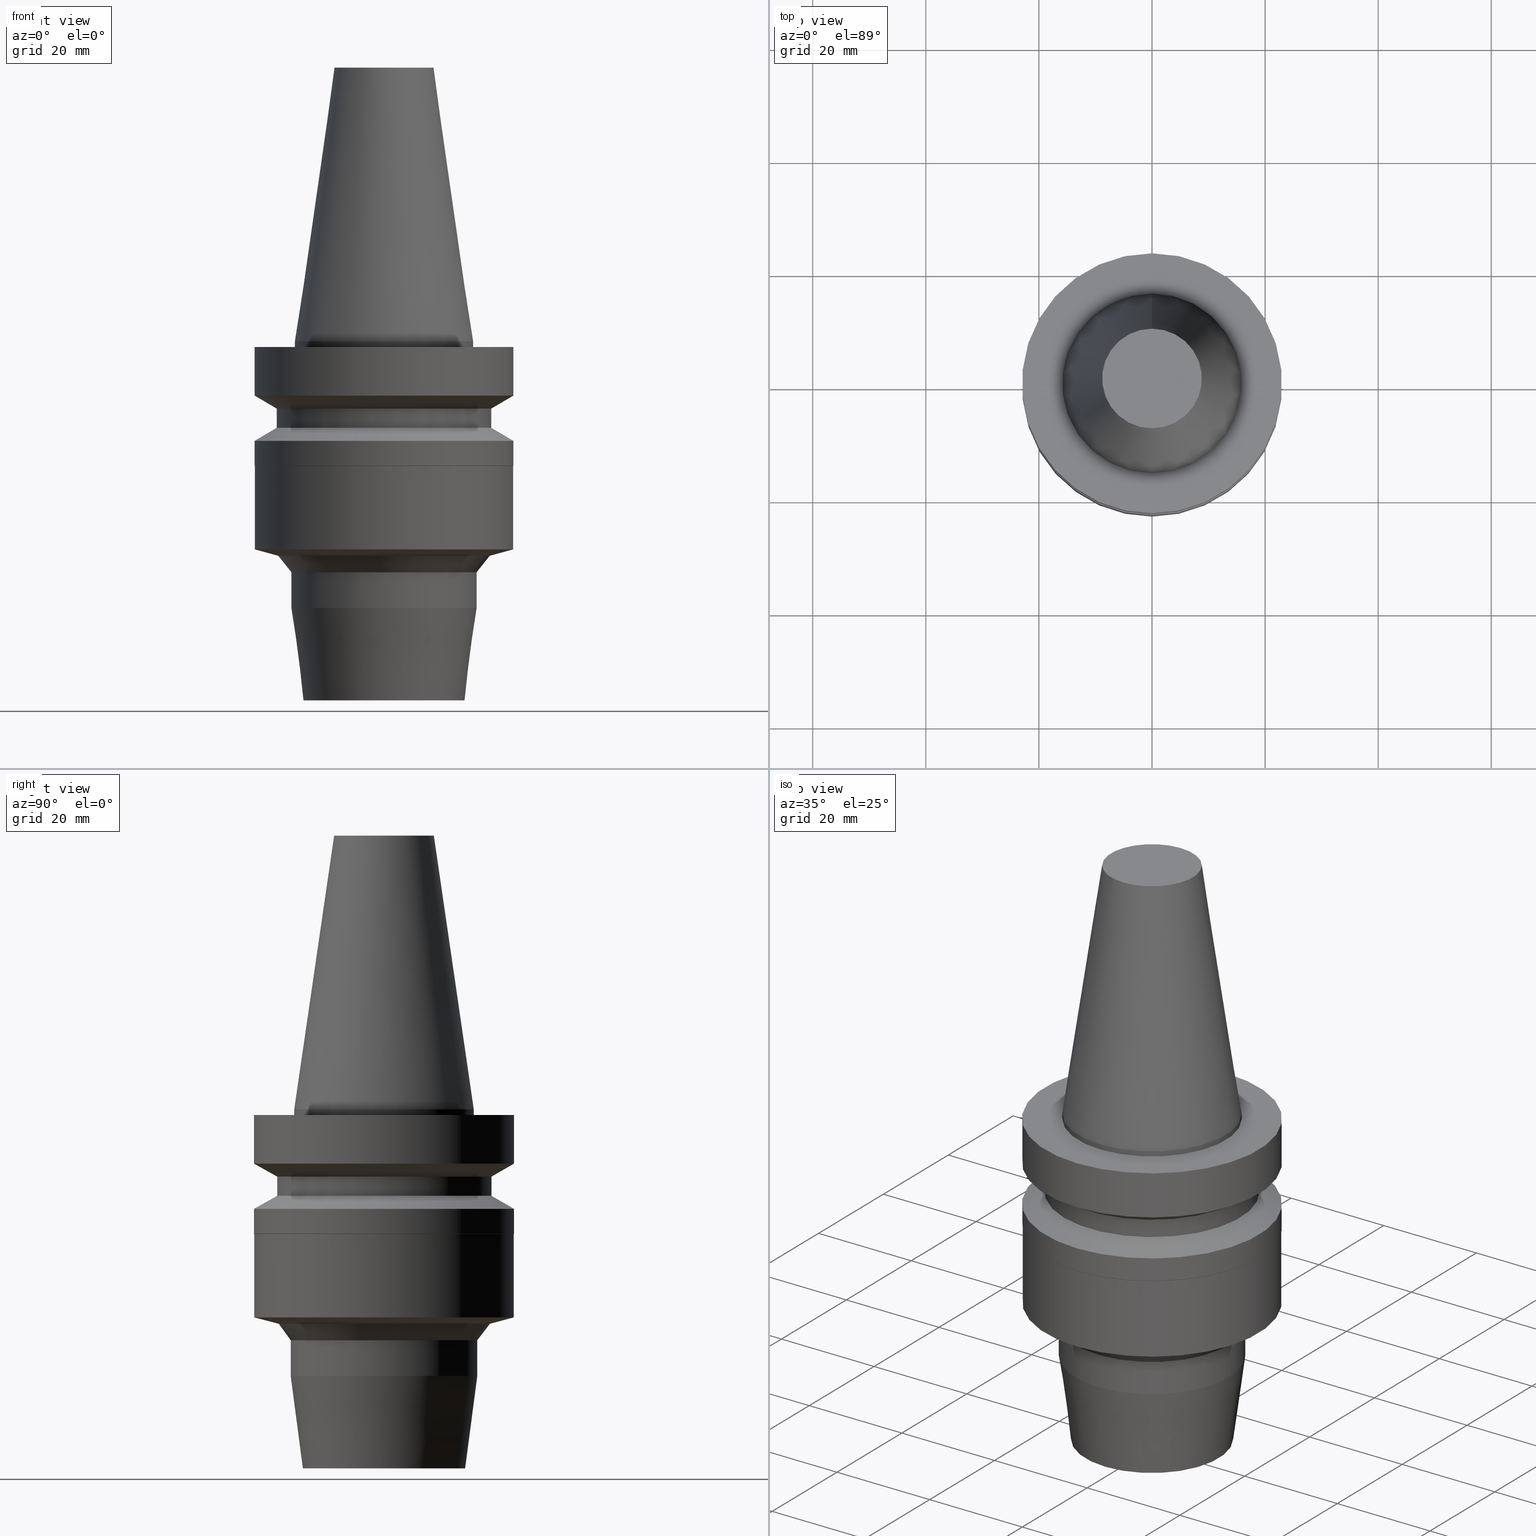
[diagram: canonical four-view strip — front | top / right | iso, engineering-drawing reading convention]
A machine part, canonical four-view strip (front | top / right | iso — engineering-drawing reading convention). The complete STEP part file that produces these views, byte-faithful:
ISO-10303-21;
HEADER;
FILE_DESCRIPTION((''),'1');
FILE_NAME('V:/90_\X2\53D65F9730C730FC30BF\X0\/00_\X2\6DE18DEF30C730FC30BF\X0\/ALL/BBT-BKUS\X2\FF76FF80FF9BFF78FF9E752852A05DE556F3\X0\201801/BBT30-HDC/BBT30-HDC.500-2.5.stp','2018-02-07T04:31:55',(''),(''),'Spatial Interop R21 SP3','Kubotek KeyCreator 2011 V10.0.2 (22737)',' ');
FILE_SCHEMA(('automotive_design'));
ENDSEC;
DATA;
#1=MECHANICAL_DESIGN_GEOMETRIC_PRESENTATION_REPRESENTATION(' ',(#10,#11,#12,#13,#14,#15,#16,#17,#18,#19,#20,#21,#22,#23,#24,#25,#26,#27,#28,#29,#30,#31,#32,#33,#34,#35,#36,#37,#38,#39,#40,#41),#6);
#2=PRODUCT_DEFINITION_CONTEXT('',#42,'design');
#3=APPLICATION_PROTOCOL_DEFINITION('INTERNATIONAL STANDARD','automotive_design',1994,#42);
#4=PRODUCT_CATEGORY_RELATIONSHIP('NONE','NONE',#43,#44);
#5=SHAPE_DEFINITION_REPRESENTATION(#45,#46);
#6= (GEOMETRIC_REPRESENTATION_CONTEXT(3)GLOBAL_UNCERTAINTY_ASSIGNED_CONTEXT((#49))GLOBAL_UNIT_ASSIGNED_CONTEXT((#51,#52,#53))REPRESENTATION_CONTEXT('NONE','WORKSPACE'));
#10=STYLED_ITEM('',(#55,#56),#57);
#11=STYLED_ITEM('',(#58),#59);
#12=STYLED_ITEM('',(#60,#61),#62);
#13=STYLED_ITEM('',(#63),#64);
#14=STYLED_ITEM('',(#65,#66),#67);
#15=STYLED_ITEM('',(#68,#69),#70);
#16=STYLED_ITEM('',(#71),#72);
#17=STYLED_ITEM('',(#73,#74),#75);
#18=STYLED_ITEM('',(#76,#77),#78);
#19=STYLED_ITEM('',(#79),#80);
#20=STYLED_ITEM('',(#81),#82);
#21=STYLED_ITEM('',(#83),#84);
#22=STYLED_ITEM('',(#85,#86),#87);
#23=STYLED_ITEM('',(#88),#89);
#24=STYLED_ITEM('',(#90,#91),#92);
#25=STYLED_ITEM('',(#93,#94),#95);
#26=STYLED_ITEM('',(#96),#97);
#27=STYLED_ITEM('',(#98,#99),#100);
#28=STYLED_ITEM('',(#101),#102);
#29=STYLED_ITEM('',(#103),#104);
#30=STYLED_ITEM('',(#105,#106),#107);
#31=STYLED_ITEM('',(#108,#109),#110);
#32=STYLED_ITEM('',(#111,#112),#113);
#33=STYLED_ITEM('',(#114,#115),#116);
#34=STYLED_ITEM('',(#117),#118);
#35=STYLED_ITEM('',(#119,#120),#121);
#36=STYLED_ITEM('',(#122),#123);
#37=STYLED_ITEM('',(#124),#125);
#38=STYLED_ITEM('',(#126,#127),#128);
#39=STYLED_ITEM('',(#129),#130);
#40=STYLED_ITEM('',(#131,#132),#133);
#41=STYLED_ITEM('',(#134),#135);
#42=APPLICATION_CONTEXT(' ');
#43=PRODUCT_CATEGORY('part','NONE');
#44=PRODUCT_RELATED_PRODUCT_CATEGORY('detail',' ',(#136));
#45=PRODUCT_DEFINITION_SHAPE('NONE','NONE',#137);
#46=ADVANCED_BREP_SHAPE_REPRESENTATION('Unnamed[1]',(#70,#138),#6);
#49=UNCERTAINTY_MEASURE_WITH_UNIT(LENGTH_MEASURE(1.0E-006),#51,'','');
#51= (CONVERSION_BASED_UNIT('MILLIMETRE',#141)LENGTH_UNIT()NAMED_UNIT(#144));
#52= (NAMED_UNIT(#146)PLANE_ANGLE_UNIT()SI_UNIT($,.RADIAN.));
#53= (NAMED_UNIT(#146)SOLID_ANGLE_UNIT()SI_UNIT($,.STERADIAN.));
#55=PRESENTATION_STYLE_ASSIGNMENT((#152));
#56=PRESENTATION_STYLE_ASSIGNMENT((#153));
#57=ADVANCED_FACE('Unnamed[1]',(#154,#155),#156,.T.);
#58=PRESENTATION_STYLE_ASSIGNMENT((#157));
#59=EDGE_CURVE('Unnamed[1]',#158,#158,#159,.T.);
#60=PRESENTATION_STYLE_ASSIGNMENT((#160));
#61=PRESENTATION_STYLE_ASSIGNMENT((#161));
#62=ADVANCED_FACE('Unnamed[1]',(#162,#163),#164,.T.);
#63=PRESENTATION_STYLE_ASSIGNMENT((#165));
#64=EDGE_CURVE('Unnamed[1]',#166,#166,#167,.T.);
#65=PRESENTATION_STYLE_ASSIGNMENT((#168));
#66=PRESENTATION_STYLE_ASSIGNMENT((#169));
#67=ADVANCED_FACE('Unnamed[1]',(#170,#171),#172,.T.);
#68=PRESENTATION_STYLE_ASSIGNMENT((#173));
#69=PRESENTATION_STYLE_ASSIGNMENT((#174));
#70=MANIFOLD_SOLID_BREP('Unnamed[1]',#175);
#71=PRESENTATION_STYLE_ASSIGNMENT((#176));
#72=EDGE_CURVE('Unnamed[1]',#177,#177,#178,.T.);
#73=PRESENTATION_STYLE_ASSIGNMENT((#179));
#74=PRESENTATION_STYLE_ASSIGNMENT((#180));
#75=ADVANCED_FACE('Unnamed[1]',(#181),#182,.T.);
#76=PRESENTATION_STYLE_ASSIGNMENT((#183));
#77=PRESENTATION_STYLE_ASSIGNMENT((#184));
#78=ADVANCED_FACE('Unnamed[1]',(#185,#186),#187,.T.);
#79=PRESENTATION_STYLE_ASSIGNMENT((#188));
#80=EDGE_CURVE('Unnamed[1]',#189,#189,#190,.T.);
#81=PRESENTATION_STYLE_ASSIGNMENT((#191));
#82=EDGE_CURVE('Unnamed[1]',#192,#192,#193,.T.);
#83=PRESENTATION_STYLE_ASSIGNMENT((#194));
#84=EDGE_CURVE('Unnamed[1]',#195,#195,#196,.T.);
#85=PRESENTATION_STYLE_ASSIGNMENT((#197));
#86=PRESENTATION_STYLE_ASSIGNMENT((#198));
#87=ADVANCED_FACE('Unnamed[1]',(#199,#200),#201,.T.);
#88=PRESENTATION_STYLE_ASSIGNMENT((#202));
#89=EDGE_CURVE('Unnamed[1]',#203,#203,#204,.T.);
#90=PRESENTATION_STYLE_ASSIGNMENT((#205));
#91=PRESENTATION_STYLE_ASSIGNMENT((#206));
#92=ADVANCED_FACE('Unnamed[1]',(#207,#208),#209,.T.);
#93=PRESENTATION_STYLE_ASSIGNMENT((#210));
#94=PRESENTATION_STYLE_ASSIGNMENT((#211));
#95=ADVANCED_FACE('Unnamed[1]',(#212,#213),#214,.T.);
#96=PRESENTATION_STYLE_ASSIGNMENT((#215));
#97=EDGE_CURVE('Unnamed[1]',#216,#216,#217,.T.);
#98=PRESENTATION_STYLE_ASSIGNMENT((#218));
#99=PRESENTATION_STYLE_ASSIGNMENT((#219));
#100=ADVANCED_FACE('Unnamed[1]',(#220,#221),#222,.T.);
#101=PRESENTATION_STYLE_ASSIGNMENT((#223));
#102=EDGE_CURVE('Unnamed[1]',#224,#224,#225,.T.);
#103=PRESENTATION_STYLE_ASSIGNMENT((#226));
#104=EDGE_CURVE('Unnamed[1]',#227,#227,#228,.T.);
#105=PRESENTATION_STYLE_ASSIGNMENT((#229));
#106=PRESENTATION_STYLE_ASSIGNMENT((#230));
#107=ADVANCED_FACE('Unnamed[1]',(#231,#232),#233,.T.);
#108=PRESENTATION_STYLE_ASSIGNMENT((#234));
#109=PRESENTATION_STYLE_ASSIGNMENT((#235));
#110=ADVANCED_FACE('Unnamed[1]',(#236,#237),#238,.T.);
#111=PRESENTATION_STYLE_ASSIGNMENT((#239));
#112=PRESENTATION_STYLE_ASSIGNMENT((#240));
#113=ADVANCED_FACE('Unnamed[1]',(#241,#242),#243,.T.);
#114=PRESENTATION_STYLE_ASSIGNMENT((#244));
#115=PRESENTATION_STYLE_ASSIGNMENT((#245));
#116=ADVANCED_FACE('Unnamed[1]',(#246,#247),#248,.T.);
#117=PRESENTATION_STYLE_ASSIGNMENT((#249));
#118=EDGE_CURVE('Unnamed[1]',#250,#250,#251,.T.);
#119=PRESENTATION_STYLE_ASSIGNMENT((#252));
#120=PRESENTATION_STYLE_ASSIGNMENT((#253));
#121=ADVANCED_FACE('Unnamed[1]',(#254,#255),#256,.T.);
#122=PRESENTATION_STYLE_ASSIGNMENT((#257));
#123=EDGE_CURVE('Unnamed[1]',#258,#258,#259,.T.);
#124=PRESENTATION_STYLE_ASSIGNMENT((#260));
#125=EDGE_CURVE('Unnamed[1]',#261,#261,#262,.T.);
#126=PRESENTATION_STYLE_ASSIGNMENT((#263));
#127=PRESENTATION_STYLE_ASSIGNMENT((#264));
#128=ADVANCED_FACE('Unnamed[1]',(#265,#266),#267,.T.);
#129=PRESENTATION_STYLE_ASSIGNMENT((#268));
#130=EDGE_CURVE('Unnamed[1]',#269,#269,#270,.T.);
#131=PRESENTATION_STYLE_ASSIGNMENT((#271));
#132=PRESENTATION_STYLE_ASSIGNMENT((#272));
#133=ADVANCED_FACE('Unnamed[1]',(#273),#274,.T.);
#134=PRESENTATION_STYLE_ASSIGNMENT((#275));
#135=EDGE_CURVE('Unnamed[1]',#276,#276,#277,.T.);
#136=PRODUCT('Unnamed[1]','Unnamed[1]','PART-Unnamed[1]-DESC',(#278));
#137=PRODUCT_DEFINITION('NONE','NONE',#279,#2);
#138=AXIS2_PLACEMENT_3D('',#280,#281,#282);
#141=LENGTH_MEASURE_WITH_UNIT(LENGTH_MEASURE(1.0),#283);
#144=DIMENSIONAL_EXPONENTS(1.0,0.0,0.0,0.0,0.0,0.0,0.0);
#146=DIMENSIONAL_EXPONENTS(0.0,0.0,0.0,0.0,0.0,0.0,0.0);
#152=SURFACE_STYLE_USAGE(.BOTH.,#284);
#153=CURVE_STYLE('',#285,POSITIVE_LENGTH_MEASURE(1000.0),#286);
#154=FACE_OUTER_BOUND('',#287,.T.);
#155=FACE_BOUND('',#288,.T.);
#156=PLANE('',#289);
#157=CURVE_STYLE('',#290,POSITIVE_LENGTH_MEASURE(1000.0),#291);
#158=VERTEX_POINT('',#292);
#159=CIRCLE('',#293,14.3453653554406);
#160=SURFACE_STYLE_USAGE(.BOTH.,#294);
#161=CURVE_STYLE('',#295,POSITIVE_LENGTH_MEASURE(1000.0),#296);
#162=FACE_BOUND('',#297,.T.);
#163=FACE_BOUND('',#298,.T.);
#164=CYLINDRICAL_SURFACE('',#299,19.0);
#165=CURVE_STYLE('',#300,POSITIVE_LENGTH_MEASURE(1000.0),#301);
#166=VERTEX_POINT('',#302);
#167=CIRCLE('',#303,16.5000000000001);
#168=SURFACE_STYLE_USAGE(.BOTH.,#304);
#169=CURVE_STYLE('',#305,POSITIVE_LENGTH_MEASURE(1000.0),#306);
#170=FACE_BOUND('',#307,.T.);
#171=FACE_BOUND('',#308,.T.);
#172=CYLINDRICAL_SURFACE('',#309,23.0);
#173=SURFACE_STYLE_USAGE(.BOTH.,#310);
#174=CURVE_STYLE('',#311,POSITIVE_LENGTH_MEASURE(1000.0),#312);
#175=CLOSED_SHELL('',(#133,#107,#121,#57,#113,#110,#62,#78,#67,#100,#95,#116,#92,#87,#128,#75));
#176=CURVE_STYLE('',#313,POSITIVE_LENGTH_MEASURE(1000.0),#314);
#177=VERTEX_POINT('',#315);
#178=CIRCLE('',#316,15.875);
#179=SURFACE_STYLE_USAGE(.BOTH.,#317);
#180=CURVE_STYLE('',#318,POSITIVE_LENGTH_MEASURE(1000.0),#319);
#181=FACE_OUTER_BOUND('',#320,.T.);
#182=PLANE('',#321);
#183=SURFACE_STYLE_USAGE(.BOTH.,#322);
#184=CURVE_STYLE('',#323,POSITIVE_LENGTH_MEASURE(1000.0),#324);
#185=FACE_BOUND('',#325,.T.);
#186=FACE_BOUND('',#326,.T.);
#187=CONICAL_SURFACE('',#327,21.0,1.04719755058882);
#188=CURVE_STYLE('',#328,POSITIVE_LENGTH_MEASURE(1000.0),#329);
#189=VERTEX_POINT('',#330);
#190=CIRCLE('',#331,22.95);
#191=CURVE_STYLE('',#332,POSITIVE_LENGTH_MEASURE(1000.0),#333);
#192=VERTEX_POINT('',#334);
#193=CIRCLE('',#335,19.0);
#194=CURVE_STYLE('',#336,POSITIVE_LENGTH_MEASURE(1000.0),#337);
#195=VERTEX_POINT('',#338);
#196=CIRCLE('',#339,16.5000000000001);
#197=SURFACE_STYLE_USAGE(.BOTH.,#340);
#198=CURVE_STYLE('',#341,POSITIVE_LENGTH_MEASURE(1000.0),#342);
#199=FACE_BOUND('',#343,.T.);
#200=FACE_BOUND('',#344,.T.);
#201=CYLINDRICAL_SURFACE('',#345,16.5000000000001);
#202=CURVE_STYLE('',#346,POSITIVE_LENGTH_MEASURE(1000.0),#347);
#203=VERTEX_POINT('',#348);
#204=CIRCLE('',#349,8.81650000198669);
#205=SURFACE_STYLE_USAGE(.BOTH.,#350);
#206=CURVE_STYLE('',#351,POSITIVE_LENGTH_MEASURE(1000.0),#352);
#207=FACE_BOUND('',#353,.T.);
#208=FACE_BOUND('',#354,.T.);
#209=CONICAL_SURFACE('',#355,17.6117714323463,0.654498469497864);
#210=SURFACE_STYLE_USAGE(.BOTH.,#356);
#211=CURVE_STYLE('',#357,POSITIVE_LENGTH_MEASURE(1000.0),#358);
#212=FACE_BOUND('',#359,.T.);
#213=FACE_BOUND('',#360,.T.);
#214=CYLINDRICAL_SURFACE('',#361,22.95);
#215=CURVE_STYLE('',#362,POSITIVE_LENGTH_MEASURE(1000.0),#363);
#216=VERTEX_POINT('',#364);
#217=CIRCLE('',#365,23.0);
#218=SURFACE_STYLE_USAGE(.BOTH.,#366);
#219=CURVE_STYLE('',#367,POSITIVE_LENGTH_MEASURE(1000.0),#368);
#220=FACE_BOUND('',#369,.T.);
#221=FACE_BOUND('',#370,.T.);
#222=CONICAL_SURFACE('',#371,22.975,0.785398163397128);
#223=CURVE_STYLE('',#372,POSITIVE_LENGTH_MEASURE(1000.0),#373);
#224=VERTEX_POINT('',#374);
#225=CIRCLE('',#375,23.0);
#226=CURVE_STYLE('',#376,POSITIVE_LENGTH_MEASURE(1000.0),#377);
#227=VERTEX_POINT('',#378);
#228=CIRCLE('',#379,23.0);
#229=SURFACE_STYLE_USAGE(.BOTH.,#380);
#230=CURVE_STYLE('',#381,POSITIVE_LENGTH_MEASURE(1000.0),#382);
#231=FACE_BOUND('',#383,.T.);
#232=FACE_BOUND('',#384,.T.);
#233=CONICAL_SURFACE('',#385,12.3457500009933,0.144815870013618);
#234=SURFACE_STYLE_USAGE(.BOTH.,#386);
#235=CURVE_STYLE('',#387,POSITIVE_LENGTH_MEASURE(1000.0),#388);
#236=FACE_BOUND('',#389,.T.);
#237=FACE_BOUND('',#390,.T.);
#238=CONICAL_SURFACE('',#391,21.0,1.04719755058881);
#239=SURFACE_STYLE_USAGE(.BOTH.,#392);
#240=CURVE_STYLE('',#393,POSITIVE_LENGTH_MEASURE(1000.0),#394);
#241=FACE_BOUND('',#395,.T.);
#242=FACE_BOUND('',#396,.T.);
#243=CYLINDRICAL_SURFACE('',#397,23.0);
#244=SURFACE_STYLE_USAGE(.BOTH.,#398);
#245=CURVE_STYLE('',#399,POSITIVE_LENGTH_MEASURE(1000.0),#400);
#246=FACE_BOUND('',#401,.T.);
#247=FACE_BOUND('',#402,.T.);
#248=CONICAL_SURFACE('',#403,20.8367714323463,1.30899693899576);
#249=CURVE_STYLE('',#404,POSITIVE_LENGTH_MEASURE(1000.0),#405);
#250=VERTEX_POINT('',#406);
#251=CIRCLE('',#407,19.0);
#252=SURFACE_STYLE_USAGE(.BOTH.,#408);
#253=CURVE_STYLE('',#409,POSITIVE_LENGTH_MEASURE(1000.0),#410);
#254=FACE_BOUND('',#411,.T.);
#255=FACE_BOUND('',#412,.T.);
#256=CYLINDRICAL_SURFACE('',#413,15.875);
#257=CURVE_STYLE('',#414,POSITIVE_LENGTH_MEASURE(1000.0),#415);
#258=VERTEX_POINT('',#416);
#259=CIRCLE('',#417,23.0);
#260=CURVE_STYLE('',#418,POSITIVE_LENGTH_MEASURE(1000.0),#419);
#261=VERTEX_POINT('',#420);
#262=CIRCLE('',#421,15.875);
#263=SURFACE_STYLE_USAGE(.BOTH.,#422);
#264=CURVE_STYLE('',#423,POSITIVE_LENGTH_MEASURE(1000.0),#424);
#265=FACE_BOUND('',#425,.T.);
#266=FACE_BOUND('',#426,.T.);
#267=CONICAL_SURFACE('',#427,15.4226826777203,0.130899693899549);
#268=CURVE_STYLE('',#428,POSITIVE_LENGTH_MEASURE(1000.0),#429);
#269=VERTEX_POINT('',#430);
#270=CIRCLE('',#431,22.95);
#271=SURFACE_STYLE_USAGE(.BOTH.,#432);
#272=CURVE_STYLE('',#433,POSITIVE_LENGTH_MEASURE(1000.0),#434);
#273=FACE_OUTER_BOUND('',#435,.T.);
#274=PLANE('',#436);
#275=CURVE_STYLE('',#437,POSITIVE_LENGTH_MEASURE(1000.0),#438);
#276=VERTEX_POINT('',#439);
#277=CIRCLE('',#440,18.7235428646925);
#278=PRODUCT_CONTEXT('',#42,'mechanical');
#279=PRODUCT_DEFINITION_FORMATION_WITH_SPECIFIED_SOURCE(' ','NONE',#136,.NOT_KNOWN.);
#280=CARTESIAN_POINT('',(0.0,0.0,0.0));
#281=DIRECTION('',(0.0,0.0,1.0));
#282=DIRECTION('',(1.0,0.0,0.0));
#283= (NAMED_UNIT(#144)LENGTH_UNIT()SI_UNIT(.MILLI.,.METRE.));
#284=SURFACE_SIDE_STYLE('',(#442));
#285=DRAUGHTING_PRE_DEFINED_CURVE_FONT('continuous');
#286=COLOUR_RGB('',0.0,1.0,0.0);
#287=EDGE_LOOP('',(#443));
#288=EDGE_LOOP('',(#444));
#289=AXIS2_PLACEMENT_3D('',#445,#446,#447);
#290=DRAUGHTING_PRE_DEFINED_CURVE_FONT('continuous');
#291=COLOUR_RGB('',0.0,1.0,0.0);
#292=CARTESIAN_POINT('',(3.88825358729292E-015,14.3453653554406,-63.5000000000013));
#293=AXIS2_PLACEMENT_3D('',#448,#449,#450);
#294=SURFACE_SIDE_STYLE('',(#451));
#295=DRAUGHTING_PRE_DEFINED_CURVE_FONT('continuous');
#296=COLOUR_RGB('',0.0,1.0,0.0);
#297=EDGE_LOOP('',(#452));
#298=EDGE_LOOP('',(#453));
#299=AXIS2_PLACEMENT_3D('',#454,#455,#456);
#300=DRAUGHTING_PRE_DEFINED_CURVE_FONT('continuous');
#301=COLOUR_RGB('',0.0,1.0,0.0);
#302=CARTESIAN_POINT('',(2.88612052140079E-015,16.5000000000001,-47.1339250371653));
#303=AXIS2_PLACEMENT_3D('',#457,#458,#459);
#304=SURFACE_SIDE_STYLE('',(#460));
#305=DRAUGHTING_PRE_DEFINED_CURVE_FONT('continuous');
#306=COLOUR_RGB('',0.0,1.0,0.0);
#307=EDGE_LOOP('',(#461));
#308=EDGE_LOOP('',(#462));
#309=AXIS2_PLACEMENT_3D('',#463,#464,#465);
#310=SURFACE_SIDE_STYLE('',(#466));
#311=DRAUGHTING_PRE_DEFINED_CURVE_FONT('continuous');
#312=COLOUR_RGB('',0.0,1.0,0.0);
#313=DRAUGHTING_PRE_DEFINED_CURVE_FONT('continuous');
#314=COLOUR_RGB('',0.0,1.0,0.0);
#315=CARTESIAN_POINT('',(6.12323399573675E-017,15.875,-0.999999999999998));
#316=AXIS2_PLACEMENT_3D('',#467,#468,#469);
#317=SURFACE_SIDE_STYLE('',(#470));
#318=DRAUGHTING_PRE_DEFINED_CURVE_FONT('continuous');
#319=COLOUR_RGB('',0.0,1.0,0.0);
#320=EDGE_LOOP('',(#471));
#321=AXIS2_PLACEMENT_3D('',#472,#473,#474);
#322=SURFACE_SIDE_STYLE('',(#475));
#323=DRAUGHTING_PRE_DEFINED_CURVE_FONT('continuous');
#324=COLOUR_RGB('',0.0,1.0,0.0);
#325=EDGE_LOOP('',(#476));
#326=EDGE_LOOP('',(#477));
#327=AXIS2_PLACEMENT_3D('',#478,#479,#480);
#328=DRAUGHTING_PRE_DEFINED_CURVE_FONT('continuous');
#329=COLOUR_RGB('',0.0,1.0,0.0);
#330=CARTESIAN_POINT('',(1.35017309606003E-015,22.95,-22.0500000000012));
#331=AXIS2_PLACEMENT_3D('',#481,#482,#483);
#332=DRAUGHTING_PRE_DEFINED_CURVE_FONT('continuous');
#333=COLOUR_RGB('',0.0,1.0,0.0);
#334=CARTESIAN_POINT('',(7.29240495619202E-016,19.0,-11.90940108));
#335=AXIS2_PLACEMENT_3D('',#484,#485,#486);
#336=DRAUGHTING_PRE_DEFINED_CURVE_FONT('continuous');
#337=COLOUR_RGB('',0.0,1.0,0.0);
#338=CARTESIAN_POINT('',(2.50013194786286E-015,16.5000000000001,-40.8302532551189));
#339=AXIS2_PLACEMENT_3D('',#487,#488,#489);
#340=SURFACE_SIDE_STYLE('',(#490));
#341=DRAUGHTING_PRE_DEFINED_CURVE_FONT('continuous');
#342=COLOUR_RGB('',0.0,1.0,0.0);
#343=EDGE_LOOP('',(#491));
#344=EDGE_LOOP('',(#492));
#345=AXIS2_PLACEMENT_3D('',#493,#494,#495);
#346=DRAUGHTING_PRE_DEFINED_CURVE_FONT('continuous');
#347=COLOUR_RGB('',0.0,1.0,0.0);
#348=CARTESIAN_POINT('',(-2.96364525393659E-015,8.81650000198669,48.4));
#349=AXIS2_PLACEMENT_3D('',#496,#497,#498);
#350=SURFACE_SIDE_STYLE('',(#499));
#351=DRAUGHTING_PRE_DEFINED_CURVE_FONT('continuous');
#352=COLOUR_RGB('',0.0,1.0,0.0);
#353=EDGE_LOOP('',(#500));
#354=EDGE_LOOP('',(#501));
#355=AXIS2_PLACEMENT_3D('',#502,#503,#504);
#356=SURFACE_SIDE_STYLE('',(#505));
#357=DRAUGHTING_PRE_DEFINED_CURVE_FONT('continuous');
#358=COLOUR_RGB('',0.0,1.0,0.0);
#359=EDGE_LOOP('',(#506));
#360=EDGE_LOOP('',(#507));
#361=AXIS2_PLACEMENT_3D('',#508,#509,#510);
#362=DRAUGHTING_PRE_DEFINED_CURVE_FONT('continuous');
#363=COLOUR_RGB('',0.0,1.0,0.0);
#364=CARTESIAN_POINT('',(6.12323399573674E-017,23.0,-0.999999999999997));
#365=AXIS2_PLACEMENT_3D('',#511,#512,#513);
#366=SURFACE_SIDE_STYLE('',(#514));
#367=DRAUGHTING_PRE_DEFINED_CURVE_FONT('continuous');
#368=COLOUR_RGB('',0.0,1.0,0.0);
#369=EDGE_LOOP('',(#515));
#370=EDGE_LOOP('',(#516));
#371=AXIS2_PLACEMENT_3D('',#517,#518,#519);
#372=DRAUGHTING_PRE_DEFINED_CURVE_FONT('continuous');
#373=COLOUR_RGB('',0.0,1.0,0.0);
#374=CARTESIAN_POINT('',(5.87830463590729E-016,23.0,-9.59999999999999));
#375=AXIS2_PLACEMENT_3D('',#520,#521,#522);
#376=DRAUGHTING_PRE_DEFINED_CURVE_FONT('continuous');
#377=COLOUR_RGB('',0.0,1.0,0.0);
#378=CARTESIAN_POINT('',(1.34711147906216E-015,23.0,-22.0000000000012));
#379=AXIS2_PLACEMENT_3D('',#523,#524,#525);
#380=SURFACE_SIDE_STYLE('',(#526));
#381=DRAUGHTING_PRE_DEFINED_CURVE_FONT('continuous');
#382=COLOUR_RGB('',0.0,1.0,0.0);
#383=EDGE_LOOP('',(#527));
#384=EDGE_LOOP('',(#528));
#385=AXIS2_PLACEMENT_3D('',#529,#530,#531);
#386=SURFACE_SIDE_STYLE('',(#532));
#387=DRAUGHTING_PRE_DEFINED_CURVE_FONT('continuous');
#388=COLOUR_RGB('',0.0,1.0,0.0);
#389=EDGE_LOOP('',(#533));
#390=EDGE_LOOP('',(#534));
#391=AXIS2_PLACEMENT_3D('',#535,#536,#537);
#392=SURFACE_SIDE_STYLE('',(#538));
#393=DRAUGHTING_PRE_DEFINED_CURVE_FONT('continuous');
#394=COLOUR_RGB('',0.0,1.0,0.0);
#395=EDGE_LOOP('',(#539));
#396=EDGE_LOOP('',(#540));
#397=AXIS2_PLACEMENT_3D('',#541,#542,#543);
#398=SURFACE_SIDE_STYLE('',(#544));
#399=DRAUGHTING_PRE_DEFINED_CURVE_FONT('continuous');
#400=COLOUR_RGB('',0.0,1.0,0.0);
#401=EDGE_LOOP('',(#545));
#402=EDGE_LOOP('',(#546));
#403=AXIS2_PLACEMENT_3D('',#547,#548,#549);
#404=DRAUGHTING_PRE_DEFINED_CURVE_FONT('continuous');
#405=COLOUR_RGB('',0.0,1.0,0.0);
#406=CARTESIAN_POINT('',(9.36279151221199E-016,19.0,-15.29059892));
#407=AXIS2_PLACEMENT_3D('',#550,#551,#552);
#408=SURFACE_SIDE_STYLE('',(#553));
#409=DRAUGHTING_PRE_DEFINED_CURVE_FONT('continuous');
#410=COLOUR_RGB('',0.0,1.0,0.0);
#411=EDGE_LOOP('',(#554));
#412=EDGE_LOOP('',(#555));
#413=AXIS2_PLACEMENT_3D('',#556,#557,#558);
#414=DRAUGHTING_PRE_DEFINED_CURVE_FONT('continuous');
#415=COLOUR_RGB('',0.0,1.0,0.0);
#416=CARTESIAN_POINT('',(1.07768918324967E-015,23.0,-17.6));
#417=AXIS2_PLACEMENT_3D('',#559,#560,#561);
#418=DRAUGHTING_PRE_DEFINED_CURVE_FONT('continuous');
#419=COLOUR_RGB('',0.0,1.0,0.0);
#420=CARTESIAN_POINT('',(-1.95674482349743E-031,15.875,1.94412679364642E-015));
#421=AXIS2_PLACEMENT_3D('',#562,#563,#564);
#422=SURFACE_SIDE_STYLE('',(#565));
#423=DRAUGHTING_PRE_DEFINED_CURVE_FONT('continuous');
#424=COLOUR_RGB('',0.0,1.0,0.0);
#425=EDGE_LOOP('',(#566));
#426=EDGE_LOOP('',(#567));
#427=AXIS2_PLACEMENT_3D('',#568,#569,#570);
#428=DRAUGHTING_PRE_DEFINED_CURVE_FONT('continuous');
#429=COLOUR_RGB('',0.0,1.0,0.0);
#430=CARTESIAN_POINT('',(2.25335011043121E-015,22.95,-36.8000000000013));
#431=AXIS2_PLACEMENT_3D('',#571,#572,#573);
#432=SURFACE_SIDE_STYLE('',(#574));
#433=DRAUGHTING_PRE_DEFINED_CURVE_FONT('continuous');
#434=COLOUR_RGB('',0.0,1.0,0.0);
#435=EDGE_LOOP('',(#575));
#436=AXIS2_PLACEMENT_3D('',#576,#577,#578);
#437=DRAUGHTING_PRE_DEFINED_CURVE_FONT('continuous');
#438=COLOUR_RGB('',0.0,1.0,0.0);
#439=CARTESIAN_POINT('',(2.32269425215606E-015,18.7235428646925,-37.9324757762517));
#440=AXIS2_PLACEMENT_3D('',#579,#580,#581);
#442=SURFACE_STYLE_FILL_AREA(#582);
#443=ORIENTED_EDGE('',*,*,#97,.F.);
#444=ORIENTED_EDGE('',*,*,#72,.T.);
#445=CARTESIAN_POINT('',(6.12323399573674E-017,19.4375,-0.999999999999998));
#446=DIRECTION('',(-6.12323399573677E-017,-1.22464679914735E-016,1.0));
#447=DIRECTION('',(1.23259516440783E-032,-1.0,-1.22464679914735E-016));
#448=CARTESIAN_POINT('',(3.88825358729292E-015,7.77650717458585E-015,-63.5000000000013));
#449=DIRECTION('',(6.12323399573677E-017,1.22464679914735E-016,-1.0));
#450=DIRECTION('',(-1.23259516440783E-032,1.0,1.22464679914735E-016));
#451=SURFACE_STYLE_FILL_AREA(#583);
#452=ORIENTED_EDGE('',*,*,#118,.F.);
#453=ORIENTED_EDGE('',*,*,#82,.T.);
#454=CARTESIAN_POINT('',(8.32759823420201E-016,1.6655196468404E-015,-13.6));
#455=DIRECTION('',(6.12323399573677E-017,1.22464679914735E-016,-1.0));
#456=DIRECTION('',(-1.23259516440783E-032,1.0,1.22464679914735E-016));
#457=CARTESIAN_POINT('',(2.88612052140079E-015,5.77224104280158E-015,-47.1339250371653));
#458=DIRECTION('',(6.12323399573677E-017,1.22464679914735E-016,-1.0));
#459=DIRECTION('',(-1.23259516440783E-032,1.0,1.22464679914735E-016));
#460=SURFACE_STYLE_FILL_AREA(#584);
#461=ORIENTED_EDGE('',*,*,#104,.F.);
#462=ORIENTED_EDGE('',*,*,#123,.T.);
#463=CARTESIAN_POINT('',(1.21240033115592E-015,2.42480066231183E-015,-19.8000000000006));
#464=DIRECTION('',(6.12323399573677E-017,1.22464679914735E-016,-1.0));
#465=DIRECTION('',(-1.23259516440783E-032,1.0,1.22464679914735E-016));
#466=SURFACE_STYLE_FILL_AREA(#585);
#467=CARTESIAN_POINT('',(6.12323399573677E-017,1.22464679914735E-016,-1.0));
#468=DIRECTION('',(6.12323399573677E-017,1.22464679914735E-016,-1.0));
#469=DIRECTION('',(-1.23259516440783E-032,1.0,1.22464679914735E-016));
#470=SURFACE_STYLE_FILL_AREA(#586);
#471=ORIENTED_EDGE('',*,*,#59,.T.);
#472=CARTESIAN_POINT('',(3.88825358729292E-015,7.17268267772031,-63.5000000000013));
#473=DIRECTION('',(6.12323399573677E-017,1.22464679914735E-016,-1.0));
#474=DIRECTION('',(-1.23259516440783E-032,1.0,1.22464679914735E-016));
#475=SURFACE_STYLE_FILL_AREA(#587);
#476=ORIENTED_EDGE('',*,*,#123,.F.);
#477=ORIENTED_EDGE('',*,*,#118,.T.);
#478=CARTESIAN_POINT('',(1.00698416723543E-015,2.01396833447087E-015,-16.44529946));
#479=DIRECTION('',(6.12323399573677E-017,1.22464679914735E-016,-1.0));
#480=DIRECTION('',(-1.23259516440783E-032,1.0,1.22464679914735E-016));
#481=CARTESIAN_POINT('',(1.35017309606003E-015,2.70034619212006E-015,-22.0500000000012));
#482=DIRECTION('',(6.12323399573677E-017,1.22464679914735E-016,-1.0));
#483=DIRECTION('',(-1.23259516440783E-032,1.0,1.22464679914735E-016));
#484=CARTESIAN_POINT('',(7.29240495619202E-016,1.4584809912384E-015,-11.90940108));
#485=DIRECTION('',(6.12323399573677E-017,1.22464679914735E-016,-1.0));
#486=DIRECTION('',(-1.23259516440783E-032,1.0,1.22464679914735E-016));
#487=CARTESIAN_POINT('',(2.50013194786286E-015,5.00026389572571E-015,-40.8302532551189));
#488=DIRECTION('',(6.12323399573677E-017,1.22464679914735E-016,-1.0));
#489=DIRECTION('',(-1.23259516440783E-032,1.0,1.22464679914735E-016));
#490=SURFACE_STYLE_FILL_AREA(#588);
#491=ORIENTED_EDGE('',*,*,#64,.F.);
#492=ORIENTED_EDGE('',*,*,#84,.T.);
#493=CARTESIAN_POINT('',(2.69312623463182E-015,5.38625246926365E-015,-43.9820891461421));
#494=DIRECTION('',(6.12323399573677E-017,1.22464679914735E-016,-1.0));
#495=DIRECTION('',(-1.23259516440783E-032,1.0,1.22464679914735E-016));
#496=CARTESIAN_POINT('',(-2.96364525393659E-015,-5.92729050787319E-015,48.4));
#497=DIRECTION('',(6.12323399573677E-017,1.22464679914735E-016,-1.0));
#498=DIRECTION('',(-1.23259516440783E-032,1.0,1.22464679914735E-016));
#499=SURFACE_STYLE_FILL_AREA(#589);
#500=ORIENTED_EDGE('',*,*,#84,.F.);
#501=ORIENTED_EDGE('',*,*,#135,.T.);
#502=CARTESIAN_POINT('',(2.41141310000946E-015,4.82282620001891E-015,-39.3813645156853));
#503=DIRECTION('',(-6.12323399573677E-017,-1.22464679914735E-016,1.0));
#504=DIRECTION('',(-1.23259516440783E-032,1.0,1.22464679914735E-016));
#505=SURFACE_STYLE_FILL_AREA(#590);
#506=ORIENTED_EDGE('',*,*,#130,.F.);
#507=ORIENTED_EDGE('',*,*,#80,.T.);
#508=CARTESIAN_POINT('',(1.80176160324562E-015,3.60352320649124E-015,-29.4250000000013));
#509=DIRECTION('',(6.12323399573677E-017,1.22464679914735E-016,-1.0));
#510=DIRECTION('',(-1.23259516440783E-032,1.0,1.22464679914735E-016));
#511=CARTESIAN_POINT('',(6.12323399573677E-017,1.22464679914735E-016,-1.0));
#512=DIRECTION('',(6.12323399573677E-017,1.22464679914735E-016,-1.0));
#513=DIRECTION('',(-1.23259516440783E-032,1.0,1.22464679914735E-016));
#514=SURFACE_STYLE_FILL_AREA(#591);
#515=ORIENTED_EDGE('',*,*,#80,.F.);
#516=ORIENTED_EDGE('',*,*,#104,.T.);
#517=CARTESIAN_POINT('',(1.3486422875611E-015,2.69728457512219E-015,-22.0250000000012));
#518=DIRECTION('',(-6.12323399573677E-017,-1.22464679914735E-016,1.0));
#519=DIRECTION('',(-1.23259516440783E-032,1.0,1.22464679914735E-016));
#520=CARTESIAN_POINT('',(5.87830463590729E-016,1.17566092718146E-015,-9.59999999999999));
#521=DIRECTION('',(6.12323399573677E-017,1.22464679914735E-016,-1.0));
#522=DIRECTION('',(-1.23259516440783E-032,1.0,1.22464679914735E-016));
#523=CARTESIAN_POINT('',(1.34711147906216E-015,2.69422295812432E-015,-22.0000000000012));
#524=DIRECTION('',(6.12323399573677E-017,1.22464679914735E-016,-1.0));
#525=DIRECTION('',(-1.23259516440783E-032,1.0,1.22464679914735E-016));
#526=SURFACE_STYLE_FILL_AREA(#592);
#527=ORIENTED_EDGE('',*,*,#125,.F.);
#528=ORIENTED_EDGE('',*,*,#89,.T.);
#529=CARTESIAN_POINT('',(-1.4818226269683E-015,-2.96364525393659E-015,24.2));
#530=DIRECTION('',(6.12323399573677E-017,1.22464679914735E-016,-1.0));
#531=DIRECTION('',(-1.23259516440783E-032,1.0,1.22464679914735E-016));
#532=SURFACE_STYLE_FILL_AREA(#593);
#533=ORIENTED_EDGE('',*,*,#82,.F.);
#534=ORIENTED_EDGE('',*,*,#102,.T.);
#535=CARTESIAN_POINT('',(6.58535479604966E-016,1.31707095920993E-015,-10.75470054));
#536=DIRECTION('',(-6.12323399573677E-017,-1.22464679914735E-016,1.0));
#537=DIRECTION('',(-1.23259516440783E-032,1.0,1.22464679914735E-016));
#538=SURFACE_STYLE_FILL_AREA(#594);
#539=ORIENTED_EDGE('',*,*,#102,.F.);
#540=ORIENTED_EDGE('',*,*,#97,.T.);
#541=CARTESIAN_POINT('',(3.24531401774048E-016,6.49062803548097E-016,-5.3));
#542=DIRECTION('',(6.12323399573677E-017,1.22464679914735E-016,-1.0));
#543=DIRECTION('',(-1.23259516440783E-032,1.0,1.22464679914735E-016));
#544=SURFACE_STYLE_FILL_AREA(#595);
#545=ORIENTED_EDGE('',*,*,#135,.F.);
#546=ORIENTED_EDGE('',*,*,#130,.T.);
#547=CARTESIAN_POINT('',(2.28802218129363E-015,4.57604436258727E-015,-37.3662378881265));
#548=DIRECTION('',(-6.12323399573676E-017,-1.22464679914735E-016,1.0));
#549=DIRECTION('',(-1.23259516440783E-032,1.0,1.22464679914735E-016));
#550=CARTESIAN_POINT('',(9.36279151221199E-016,1.8725583024424E-015,-15.29059892));
#551=DIRECTION('',(6.12323399573677E-017,1.22464679914735E-016,-1.0));
#552=DIRECTION('',(-1.23259516440783E-032,1.0,1.22464679914735E-016));
#553=SURFACE_STYLE_FILL_AREA(#596);
#554=ORIENTED_EDGE('',*,*,#72,.F.);
#555=ORIENTED_EDGE('',*,*,#125,.T.);
#556=CARTESIAN_POINT('',(3.06161699786838E-017,6.12323399573676E-017,-0.5));
#557=DIRECTION('',(6.12323399573677E-017,1.22464679914735E-016,-1.0));
#558=DIRECTION('',(-1.23259516440783E-032,1.0,1.22464679914735E-016));
#559=CARTESIAN_POINT('',(1.07768918324967E-015,2.15537836649934E-015,-17.6));
#560=DIRECTION('',(6.12323399573677E-017,1.22464679914735E-016,-1.0));
#561=DIRECTION('',(-1.23259516440783E-032,1.0,1.22464679914735E-016));
#562=CARTESIAN_POINT('',(0.0,0.0,0.0));
#563=DIRECTION('',(6.12323399573677E-017,1.22464679914735E-016,-1.0));
#564=DIRECTION('',(-1.23259516440783E-032,1.0,1.22464679914735E-016));
#565=SURFACE_STYLE_FILL_AREA(#597);
#566=ORIENTED_EDGE('',*,*,#59,.F.);
#567=ORIENTED_EDGE('',*,*,#64,.T.);
#568=CARTESIAN_POINT('',(3.38718705434686E-015,6.77437410869371E-015,-55.3169625185833));
#569=DIRECTION('',(-6.12323399573677E-017,-1.22464679914735E-016,1.0));
#570=DIRECTION('',(-1.23259516440783E-032,1.0,1.22464679914735E-016));
#571=CARTESIAN_POINT('',(2.25335011043121E-015,4.50670022086242E-015,-36.8000000000013));
#572=DIRECTION('',(6.12323399573677E-017,1.22464679914735E-016,-1.0));
#573=DIRECTION('',(-1.23259516440783E-032,1.0,1.22464679914735E-016));
#574=SURFACE_STYLE_FILL_AREA(#598);
#575=ORIENTED_EDGE('',*,*,#89,.F.);
#576=CARTESIAN_POINT('',(-2.96364525393659E-015,4.40825000099334,48.4));
#577=DIRECTION('',(-6.12323399573677E-017,-1.22464679914735E-016,1.0));
#578=DIRECTION('',(1.23259516440783E-032,-1.0,-1.22464679914735E-016));
#579=CARTESIAN_POINT('',(2.32269425215606E-015,4.64538850431211E-015,-37.9324757762517));
#580=DIRECTION('',(6.12323399573677E-017,1.22464679914735E-016,-1.0));
#581=DIRECTION('',(-1.23259516440783E-032,1.0,1.22464679914735E-016));
#582=FILL_AREA_STYLE('',(#599));
#583=FILL_AREA_STYLE('',(#600));
#584=FILL_AREA_STYLE('',(#601));
#585=FILL_AREA_STYLE('',(#602));
#586=FILL_AREA_STYLE('',(#603));
#587=FILL_AREA_STYLE('',(#604));
#588=FILL_AREA_STYLE('',(#605));
#589=FILL_AREA_STYLE('',(#606));
#590=FILL_AREA_STYLE('',(#607));
#591=FILL_AREA_STYLE('',(#608));
#592=FILL_AREA_STYLE('',(#609));
#593=FILL_AREA_STYLE('',(#610));
#594=FILL_AREA_STYLE('',(#611));
#595=FILL_AREA_STYLE('',(#612));
#596=FILL_AREA_STYLE('',(#613));
#597=FILL_AREA_STYLE('',(#614));
#598=FILL_AREA_STYLE('',(#615));
#599=FILL_AREA_STYLE_COLOUR('',#616);
#600=FILL_AREA_STYLE_COLOUR('',#617);
#601=FILL_AREA_STYLE_COLOUR('',#618);
#602=FILL_AREA_STYLE_COLOUR('',#619);
#603=FILL_AREA_STYLE_COLOUR('',#620);
#604=FILL_AREA_STYLE_COLOUR('',#621);
#605=FILL_AREA_STYLE_COLOUR('',#622);
#606=FILL_AREA_STYLE_COLOUR('',#623);
#607=FILL_AREA_STYLE_COLOUR('',#624);
#608=FILL_AREA_STYLE_COLOUR('',#625);
#609=FILL_AREA_STYLE_COLOUR('',#626);
#610=FILL_AREA_STYLE_COLOUR('',#627);
#611=FILL_AREA_STYLE_COLOUR('',#628);
#612=FILL_AREA_STYLE_COLOUR('',#629);
#613=FILL_AREA_STYLE_COLOUR('',#630);
#614=FILL_AREA_STYLE_COLOUR('',#631);
#615=FILL_AREA_STYLE_COLOUR('',#632);
#616=COLOUR_RGB('',0.0,1.0,0.0);
#617=COLOUR_RGB('',0.0,1.0,0.0);
#618=COLOUR_RGB('',0.0,1.0,0.0);
#619=COLOUR_RGB('',0.0,1.0,0.0);
#620=COLOUR_RGB('',0.0,1.0,0.0);
#621=COLOUR_RGB('',0.0,1.0,0.0);
#622=COLOUR_RGB('',0.0,1.0,0.0);
#623=COLOUR_RGB('',0.0,1.0,0.0);
#624=COLOUR_RGB('',0.0,1.0,0.0);
#625=COLOUR_RGB('',0.0,1.0,0.0);
#626=COLOUR_RGB('',0.0,1.0,0.0);
#627=COLOUR_RGB('',0.0,1.0,0.0);
#628=COLOUR_RGB('',0.0,1.0,0.0);
#629=COLOUR_RGB('',0.0,1.0,0.0);
#630=COLOUR_RGB('',0.0,1.0,0.0);
#631=COLOUR_RGB('',0.0,1.0,0.0);
#632=COLOUR_RGB('',0.0,1.0,0.0);
ENDSEC;
END-ISO-10303-21;
